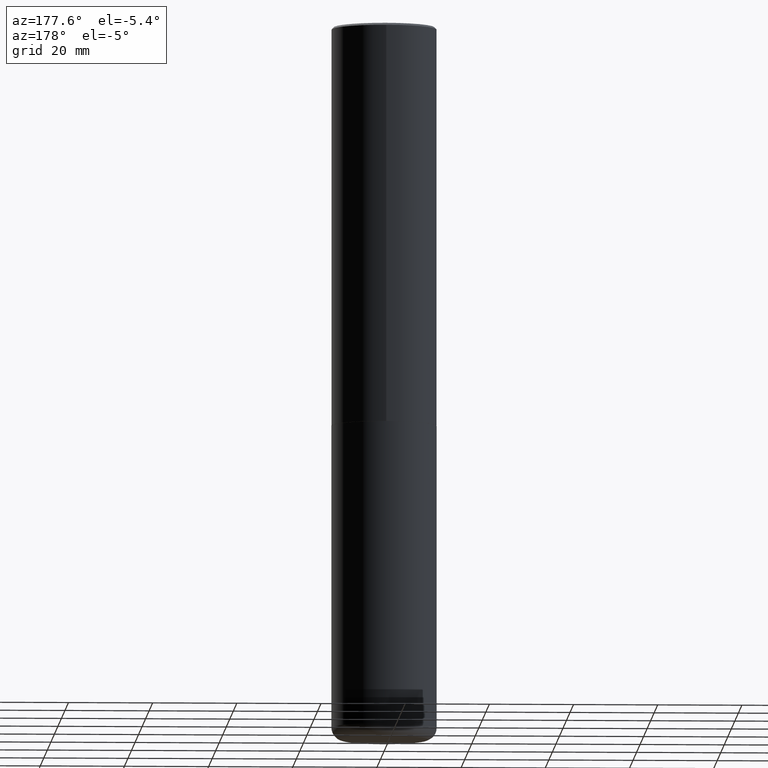
[diagram: clean part render]
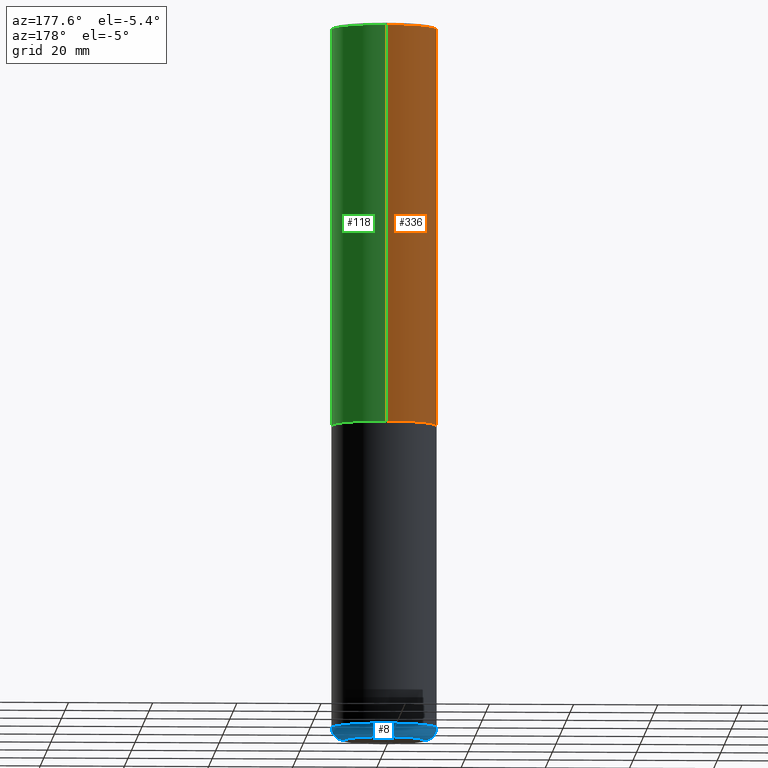
[diagram: same view with three faces highlighted in distinct colors, each labeled with its STEP entity id]
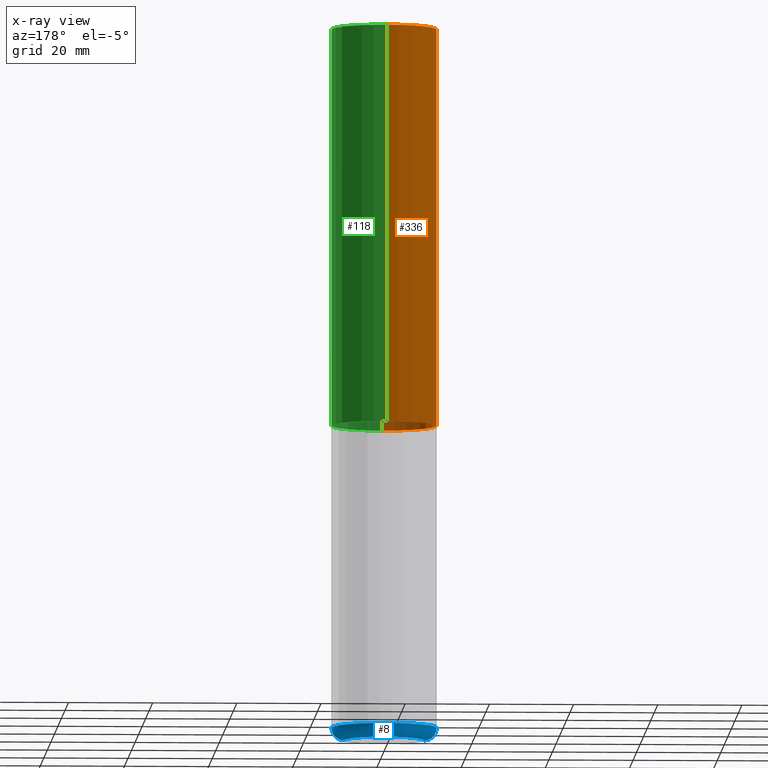
[diagram: x-ray of the same camera — body ghosted, the three highlighted faces saturated]
A machine part, auxiliary view with three faces highlighted in distinct colors.
The next image is the same camera in x-ray (body ghosted, the three faces saturated) — at least one of them is partly hidden behind the body in this view.
Their STEP definitions:

[orange] entity #336 — the highlighted cylindrical surface (partial cylindrical patch) has radius 12.5006 mm, axis along (-0, 0, 1).
#14 = AXIS2_PLACEMENT_3D ( 'NONE', #218, #257, #93 ) ;
#27 = CARTESIAN_POINT ( 'NONE',  ( -3.376394089603257868E-15, -0.4921499999999999764, -0.01999999999999839059 ) ) ;
#39 = EDGE_CURVE ( 'NONE', #391, #294, #398, .T. ) ;
#54 = AXIS2_PLACEMENT_3D ( 'NONE', #285, #156, #196 ) ;
#57 = VERTEX_POINT ( 'NONE', #114 ) ;
#67 = AXIS2_PLACEMENT_3D ( 'NONE', #402, #216, #82 ) ;
#74 = ORIENTED_EDGE ( 'NONE', *, *, #39, .F. ) ;
#82 = DIRECTION ( 'NONE',  ( -6.982962677686265922E-15, -1.000000000000000000, 3.486624039460257331E-15 ) ) ;
#90 = LINE ( 'NONE', #371, #148 ) ;
#93 = DIRECTION ( 'NONE',  ( -6.982962677686265922E-15, -1.000000000000000000, 3.330506545156063496E-15 ) ) ;
#104 = CIRCLE ( 'NONE', #14, 0.4921500000000003650 ) ;
#114 = CARTESIAN_POINT ( 'NONE',  ( -3.436665081823207030E-15, -0.4921500000000134101, -3.739099999999998758 ) ) ;
#129 = FACE_OUTER_BOUND ( 'NONE', #325, .T. ) ;
#136 = ORIENTED_EDGE ( 'NONE', *, *, #248, .T. ) ;
#148 = VECTOR ( 'NONE', #221, 39.37007874015748143 ) ;
#156 = DIRECTION ( 'NONE',  ( -2.445976594451651952E-29, 3.490754157143982552E-15, 1.000000000000000000 ) ) ;
#162 = ORIENTED_EDGE ( 'NONE', *, *, #242, .F. ) ;
#191 = DIRECTION ( 'NONE',  ( -2.445976594451651672E-29, 3.490754157143982552E-15, 1.000000000000000000 ) ) ;
#196 = DIRECTION ( 'NONE',  ( -6.982962677686265922E-15, -1.000000000000000000, 3.490754157143982552E-15 ) ) ;
#216 = DIRECTION ( 'NONE',  ( -2.445976594451651952E-29, 3.490754157143982552E-15, 1.000000000000000000 ) ) ;
#218 = CARTESIAN_POINT ( 'NONE',  ( 9.145751084314172604E-29, -1.305227886897706845E-14, -3.739100000000000534 ) ) ;
#221 = DIRECTION ( 'NONE',  ( -2.445976594451651672E-29, 3.490754157143982552E-15, 1.000000000000000000 ) ) ;
#239 = VECTOR ( 'NONE', #191, 39.37007874015748143 ) ;
#242 = EDGE_CURVE ( 'NONE', #323, #391, #90, .T. ) ;
#248 = EDGE_CURVE ( 'NONE', #57, #294, #404, .T. ) ;
#257 = DIRECTION ( 'NONE',  ( -2.445976594451651952E-29, 3.490754157143982552E-15, 1.000000000000000000 ) ) ;
#266 = CARTESIAN_POINT ( 'NONE',  ( 3.436665081823295777E-15, 0.4921499999999998098, -0.02000000000000182188 ) ) ;
#282 = ORIENTED_EDGE ( 'NONE', *, *, #313, .T. ) ;
#285 = CARTESIAN_POINT ( 'NONE',  ( 0.000000000000000000, 0.000000000000000000, 0.000000000000000000 ) ) ;
#294 = VERTEX_POINT ( 'NONE', #27 ) ;
#313 = EDGE_CURVE ( 'NONE', #323, #57, #104, .T. ) ;
#319 = CARTESIAN_POINT ( 'NONE',  ( 3.496936074043380229E-15, 0.4921499999999873198, -3.739100000000002311 ) ) ;
#323 = VERTEX_POINT ( 'NONE', #319 ) ;
#325 = EDGE_LOOP ( 'NONE', ( #162, #282, #136, #74 ) ) ;
#336 = ADVANCED_FACE ( 'NONE', ( #129 ), #406, .T. ) ;
#343 = CARTESIAN_POINT ( 'NONE',  ( -3.436665081823296565E-15, -0.4921500000000000874, 1.717974658438411319E-15 ) ) ;
#371 = CARTESIAN_POINT ( 'NONE',  ( 3.496936074043333291E-15, 0.4921500000000000874, -1.717974658438411319E-15 ) ) ;
#391 = VERTEX_POINT ( 'NONE', #266 ) ;
#398 = CIRCLE ( 'NONE', #67, 0.4921499999999999209 ) ;
#402 = CARTESIAN_POINT ( 'NONE',  ( 4.891953188903329688E-31, -6.981508314288001687E-17, -0.02000000000000010797 ) ) ;
#404 = LINE ( 'NONE', #343, #239 ) ;
#406 = CYLINDRICAL_SURFACE ( 'NONE', #54, 0.4921500000000000874 ) ;

[blue] entity #8 — the highlighted toroidal blend (fillet) surface has major radius 9.5009 mm and minor (blend) radius 2.9997 mm.
#8 = ADVANCED_FACE ( 'NONE', ( #265 ), #13, .T. ) ;
#13 = TOROIDAL_SURFACE ( 'NONE', #284, 0.3740499999999999381, 0.1181000000000000660 ) ;
#23 = CARTESIAN_POINT ( 'NONE',  ( 1.607846830690603466E-28, -2.295579150662591525E-14, -6.574799999999999756 ) ) ;
#30 = EDGE_LOOP ( 'NONE', ( #38, #205, #190, #207 ) ) ;
#38 = ORIENTED_EDGE ( 'NONE', *, *, #366, .T. ) ;
#41 = AXIS2_PLACEMENT_3D ( 'NONE', #23, #316, #338 ) ;
#42 = DIRECTION ( 'NONE',  ( 1.000000000000000000, -6.982962677686266711E-15, 4.883557194083112340E-29 ) ) ;
#77 = DIRECTION ( 'NONE',  ( 1.000000000000000000, -6.982962677686270655E-15, 0.000000000000000000 ) ) ;
#83 = CIRCLE ( 'NONE', #349, 0.3740499999999999381 ) ;
#84 = CARTESIAN_POINT ( 'NONE',  ( 0.3740499999999999381, -2.556776869621446119E-14, -6.574799999999999756 ) ) ;
#92 = CARTESIAN_POINT ( 'NONE',  ( -0.3740499999999999381, -2.008460289110760576E-14, -6.692899999999999849 ) ) ;
#96 = AXIS2_PLACEMENT_3D ( 'NONE', #84, #273, #77 ) ;
#99 = VERTEX_POINT ( 'NONE', #397 ) ;
#106 = EDGE_CURVE ( 'NONE', #356, #263, #286, .T. ) ;
#117 = DIRECTION ( 'NONE',  ( 7.105427357601001859E-15, 1.000000000000000000, -3.491481338843145583E-15 ) ) ;
#124 = EDGE_CURVE ( 'NONE', #235, #99, #310, .T. ) ;
#135 = AXIS2_PLACEMENT_3D ( 'NONE', #184, #117, #364 ) ;
#184 = CARTESIAN_POINT ( 'NONE',  ( -0.3740499999999999381, -2.029800640351526055E-14, -6.574799999999999756 ) ) ;
#189 = CARTESIAN_POINT ( 'NONE',  ( 0.3740499999999999381, -2.598011264233183690E-14, -6.692899999999999849 ) ) ;
#190 = ORIENTED_EDGE ( 'NONE', *, *, #269, .F. ) ;
#205 = ORIENTED_EDGE ( 'NONE', *, *, #106, .T. ) ;
#207 = ORIENTED_EDGE ( 'NONE', *, *, #124, .F. ) ;
#223 = DIRECTION ( 'NONE',  ( 1.000000000000000000, -6.982962677686265133E-15, 0.000000000000000000 ) ) ;
#235 = VERTEX_POINT ( 'NONE', #189 ) ;
#252 = DIRECTION ( 'NONE',  ( -2.445468806185136597E-29, 3.491481338843145583E-15, 1.000000000000000000 ) ) ;
#263 = VERTEX_POINT ( 'NONE', #407 ) ;
#265 = FACE_OUTER_BOUND ( 'NONE', #30, .T. ) ;
#269 = EDGE_CURVE ( 'NONE', #99, #263, #304, .T. ) ;
#273 = DIRECTION ( 'NONE',  ( -6.982962677686266711E-15, -1.000000000000000000, 3.491481338843145583E-15 ) ) ;
#284 = AXIS2_PLACEMENT_3D ( 'NONE', #329, #296, #42 ) ;
#286 = CIRCLE ( 'NONE', #135, 0.1181000000000000383 ) ;
#296 = DIRECTION ( 'NONE',  ( -2.445468806185136597E-29, 3.491481338843145583E-15, 1.000000000000000000 ) ) ;
#304 = CIRCLE ( 'NONE', #41, 0.4921500000000000319 ) ;
#310 = CIRCLE ( 'NONE', #96, 0.1181000000000000383 ) ;
#312 = CARTESIAN_POINT ( 'NONE',  ( 1.636727817291649966E-28, -2.336813545274328780E-14, -6.692899999999999849 ) ) ;
#316 = DIRECTION ( 'NONE',  ( -2.445468806185136597E-29, 3.491481338843145583E-15, 1.000000000000000000 ) ) ;
#329 = CARTESIAN_POINT ( 'NONE',  ( 1.607846830690603466E-28, -2.295579150662591525E-14, -6.574799999999999756 ) ) ;
#338 = DIRECTION ( 'NONE',  ( 1.000000000000000000, -6.982962677686265133E-15, 0.000000000000000000 ) ) ;
#349 = AXIS2_PLACEMENT_3D ( 'NONE', #312, #252, #223 ) ;
#356 = VERTEX_POINT ( 'NONE', #92 ) ;
#364 = DIRECTION ( 'NONE',  ( -1.000000000000000000, 7.105427357601001859E-15, 0.000000000000000000 ) ) ;
#366 = EDGE_CURVE ( 'NONE', #235, #356, #83, .T. ) ;
#397 = CARTESIAN_POINT ( 'NONE',  ( 0.4921499999999999764, -2.639245658844920945E-14, -6.574799999999999756 ) ) ;
#407 = CARTESIAN_POINT ( 'NONE',  ( -0.4921499999999999764, -1.945885543258258157E-14, -6.574799999999999756 ) ) ;

[green] entity #118 — the highlighted cylindrical surface (partial cylindrical patch) has radius 12.5006 mm, axis along (-0, 0, 1).
#5 = AXIS2_PLACEMENT_3D ( 'NONE', #241, #147, #365 ) ;
#20 = AXIS2_PLACEMENT_3D ( 'NONE', #315, #377, #53 ) ;
#27 = CARTESIAN_POINT ( 'NONE',  ( -3.376394089603257868E-15, -0.4921499999999999764, -0.01999999999999839059 ) ) ;
#46 = DIRECTION ( 'NONE',  ( -6.982962677686265922E-15, -1.000000000000000000, 3.486624039460257331E-15 ) ) ;
#53 = DIRECTION ( 'NONE',  ( -6.982962677686265922E-15, -1.000000000000000000, 3.330506545156063496E-15 ) ) ;
#57 = VERTEX_POINT ( 'NONE', #114 ) ;
#61 = CIRCLE ( 'NONE', #20, 0.4921500000000003650 ) ;
#90 = LINE ( 'NONE', #371, #148 ) ;
#111 = FACE_OUTER_BOUND ( 'NONE', #231, .T. ) ;
#114 = CARTESIAN_POINT ( 'NONE',  ( -3.436665081823207030E-15, -0.4921500000000134101, -3.739099999999998758 ) ) ;
#118 = ADVANCED_FACE ( 'NONE', ( #111 ), #243, .T. ) ;
#147 = DIRECTION ( 'NONE',  ( -2.445976594451651952E-29, 3.490754157143982552E-15, 1.000000000000000000 ) ) ;
#148 = VECTOR ( 'NONE', #221, 39.37007874015748143 ) ;
#159 = CIRCLE ( 'NONE', #334, 0.4921499999999999209 ) ;
#168 = ORIENTED_EDGE ( 'NONE', *, *, #274, .T. ) ;
#173 = EDGE_CURVE ( 'NONE', #294, #391, #159, .T. ) ;
#175 = ORIENTED_EDGE ( 'NONE', *, *, #173, .F. ) ;
#191 = DIRECTION ( 'NONE',  ( -2.445976594451651672E-29, 3.490754157143982552E-15, 1.000000000000000000 ) ) ;
#221 = DIRECTION ( 'NONE',  ( -2.445976594451651672E-29, 3.490754157143982552E-15, 1.000000000000000000 ) ) ;
#231 = EDGE_LOOP ( 'NONE', ( #168, #412, #175, #254 ) ) ;
#239 = VECTOR ( 'NONE', #191, 39.37007874015748143 ) ;
#241 = CARTESIAN_POINT ( 'NONE',  ( 0.000000000000000000, 0.000000000000000000, 0.000000000000000000 ) ) ;
#242 = EDGE_CURVE ( 'NONE', #323, #391, #90, .T. ) ;
#243 = CYLINDRICAL_SURFACE ( 'NONE', #5, 0.4921500000000000874 ) ;
#248 = EDGE_CURVE ( 'NONE', #57, #294, #404, .T. ) ;
#254 = ORIENTED_EDGE ( 'NONE', *, *, #248, .F. ) ;
#266 = CARTESIAN_POINT ( 'NONE',  ( 3.436665081823295777E-15, 0.4921499999999998098, -0.02000000000000182188 ) ) ;
#274 = EDGE_CURVE ( 'NONE', #57, #323, #61, .T. ) ;
#294 = VERTEX_POINT ( 'NONE', #27 ) ;
#315 = CARTESIAN_POINT ( 'NONE',  ( 9.145751084314172604E-29, -1.305227886897706845E-14, -3.739100000000000534 ) ) ;
#319 = CARTESIAN_POINT ( 'NONE',  ( 3.496936074043380229E-15, 0.4921499999999873198, -3.739100000000002311 ) ) ;
#323 = VERTEX_POINT ( 'NONE', #319 ) ;
#331 = CARTESIAN_POINT ( 'NONE',  ( 4.891953188903329688E-31, -6.981508314288001687E-17, -0.02000000000000010797 ) ) ;
#332 = DIRECTION ( 'NONE',  ( -2.445976594451651952E-29, 3.490754157143982552E-15, 1.000000000000000000 ) ) ;
#334 = AXIS2_PLACEMENT_3D ( 'NONE', #331, #332, #46 ) ;
#343 = CARTESIAN_POINT ( 'NONE',  ( -3.436665081823296565E-15, -0.4921500000000000874, 1.717974658438411319E-15 ) ) ;
#365 = DIRECTION ( 'NONE',  ( -6.982962677686265922E-15, -1.000000000000000000, 3.490754157143982552E-15 ) ) ;
#371 = CARTESIAN_POINT ( 'NONE',  ( 3.496936074043333291E-15, 0.4921500000000000874, -1.717974658438411319E-15 ) ) ;
#377 = DIRECTION ( 'NONE',  ( -2.445976594451651952E-29, 3.490754157143982552E-15, 1.000000000000000000 ) ) ;
#391 = VERTEX_POINT ( 'NONE', #266 ) ;
#404 = LINE ( 'NONE', #343, #239 ) ;
#412 = ORIENTED_EDGE ( 'NONE', *, *, #242, .T. ) ;